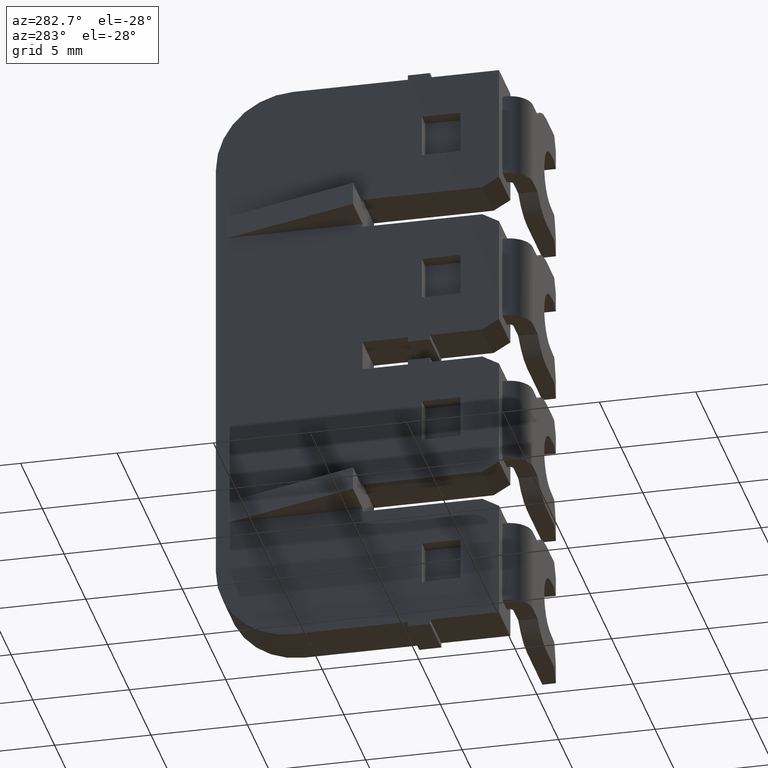
[diagram: clean part render]
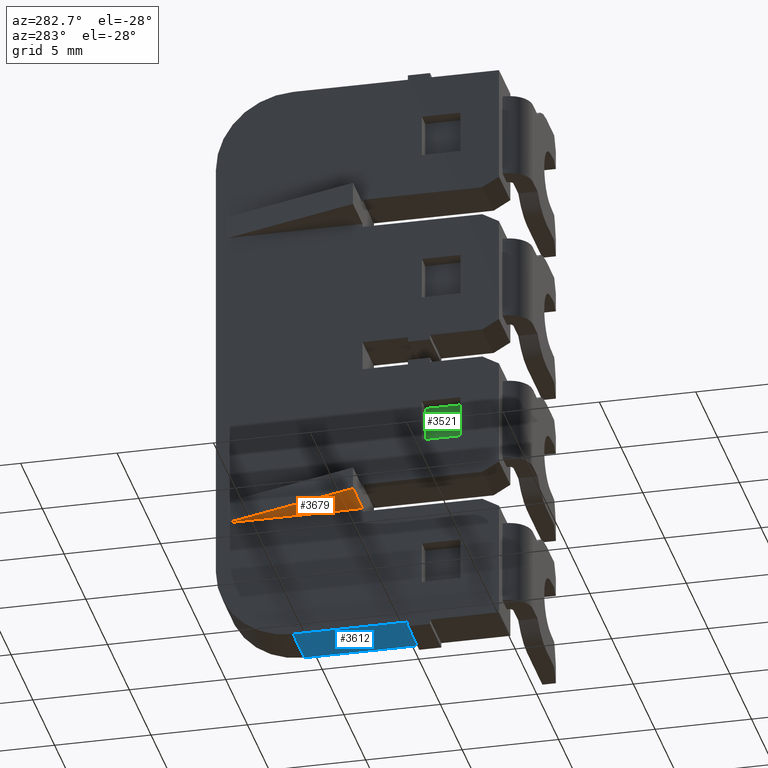
[diagram: same view with three faces highlighted in distinct colors, each labeled with its STEP entity id]
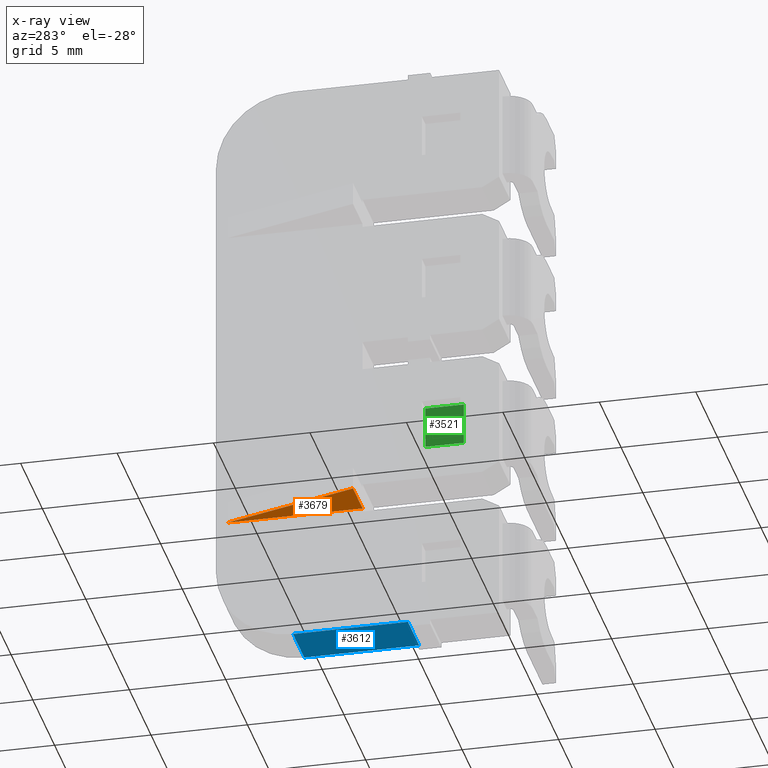
[diagram: x-ray of the same camera — body ghosted, the three highlighted faces saturated]
A machine part, auxiliary view with three faces highlighted in distinct colors.
The next image is the same camera in x-ray (body ghosted, the three faces saturated) — at least one of them is partly hidden behind the body in this view.
Their STEP definitions:

[orange] entity #3679 — the highlighted planar face has unit normal (0, 0, 1).
#96 = VECTOR ( 'NONE', #2350, 1000.000000000000000 ) ;
#100 = VECTOR ( 'NONE', #2333, 1000.000000000000100 ) ;
#154 = VECTOR ( 'NONE', #2476, 1000.000000000000000 ) ;
#543 = AXIS2_PLACEMENT_3D ( 'NONE', #5791, #5800, #5813 ) ;
#1906 = EDGE_CURVE ( 'NONE', #5139, #5089, #2325, .T. ) ;
#1917 = EDGE_CURVE ( 'NONE', #5139, #5108, #2320, .T. ) ;
#1952 = EDGE_CURVE ( 'NONE', #5089, #5108, #2485, .T. ) ;
#2320 = LINE ( 'NONE', #2336, #100 ) ;
#2325 = LINE ( 'NONE', #2332, #96 ) ;
#2332 = CARTESIAN_POINT ( 'NONE',  ( 1512.445209356660100, 1087.334526901996000, -16.92500000000000100 ) ) ;
#2333 = DIRECTION ( 'NONE',  ( -0.2998265967403909700, -0.9539937169012566700, 1.005147193930668400E-015 ) ) ;
#2336 = CARTESIAN_POINT ( 'NONE',  ( 1510.442980530508300, 1087.963798818786500, -16.92499999999999400 ) ) ;
#2350 = DIRECTION ( 'NONE',  ( 3.538835890992685300E-015, -1.000000000000000000, 1.096746120592191800E-016 ) ) ;
#2457 = CARTESIAN_POINT ( 'NONE',  ( 1510.045209356660100, 1087.334526901996000, -16.92499999999999400 ) ) ;
#2476 = DIRECTION ( 'NONE',  ( -1.000000000000000000, -3.663735981263015800E-015, 3.003463711734375600E-015 ) ) ;
#2485 = LINE ( 'NONE', #2457, #154 ) ;
#2496 = ORIENTED_EDGE ( 'NONE', *, *, #1917, .F. ) ;
#3679 = ADVANCED_FACE ( 'NONE', ( #5771 ), #5812, .F. ) ;
#4291 = CARTESIAN_POINT ( 'NONE',  ( 1512.445209356660100, 1094.334526901996000, -16.92500000000000100 ) ) ;
#4304 = CARTESIAN_POINT ( 'NONE',  ( 1510.245209356660100, 1087.334526901996000, -16.92499999999999400 ) ) ;
#4310 = CARTESIAN_POINT ( 'NONE',  ( 1512.445209356660100, 1087.334526901996000, -16.92500000000000100 ) ) ;
#4651 = EDGE_LOOP ( 'NONE', ( #2496, #4898, #4916 ) ) ;
#4898 = ORIENTED_EDGE ( 'NONE', *, *, #1906, .T. ) ;
#4916 = ORIENTED_EDGE ( 'NONE', *, *, #1952, .T. ) ;
#5089 = VERTEX_POINT ( 'NONE', #4310 ) ;
#5108 = VERTEX_POINT ( 'NONE', #4304 ) ;
#5139 = VERTEX_POINT ( 'NONE', #4291 ) ;
#5771 = FACE_OUTER_BOUND ( 'NONE', #4651, .T. ) ;
#5791 = CARTESIAN_POINT ( 'NONE',  ( 1512.445209356660100, 1087.334526901996000, -16.92500000000000100 ) ) ;
#5800 = DIRECTION ( 'NONE',  ( 3.003463711734375200E-015, 1.096746120592299800E-016, 1.000000000000000000 ) ) ;
#5812 = PLANE ( 'NONE',  #543 ) ;
#5813 = DIRECTION ( 'NONE',  ( 1.000000000000000000, -3.062777461358170000E-016, -3.003463711734375200E-015 ) ) ;

[blue] entity #3612 — the highlighted planar face has unit normal (0, 0, 1).
#4 = VECTOR ( 'NONE', #3457, 1000.000000000000000 ) ;
#28 = VECTOR ( 'NONE', #3502, 1000.000000000000000 ) ;
#47 = VECTOR ( 'NONE', #2338, 1000.000000000000000 ) ;
#62 = VECTOR ( 'NONE', #2272, 1000.000000000000000 ) ;
#505 = AXIS2_PLACEMENT_3D ( 'NONE', #5491, #5488, #5460 ) ;
#1869 = EDGE_CURVE ( 'NONE', #5144, #4457, #3426, .T. ) ;
#1873 = EDGE_CURVE ( 'NONE', #4457, #4478, #3487, .T. ) ;
#1894 = EDGE_CURVE ( 'NONE', #5128, #4478, #2265, .T. ) ;
#1914 = EDGE_CURVE ( 'NONE', #5144, #5128, #2315, .T. ) ;
#2265 = LINE ( 'NONE', #2283, #62 ) ;
#2272 = DIRECTION ( 'NONE',  ( -1.000000000000000000, -3.538835890992685300E-015, 3.039180497173570300E-015 ) ) ;
#2283 = CARTESIAN_POINT ( 'NONE',  ( 1512.445209356660100, 1084.984526901990000, -23.69999999999999900 ) ) ;
#2315 = LINE ( 'NONE', #2346, #47 ) ;
#2338 = DIRECTION ( 'NONE',  ( 3.538835890992685300E-015, -1.000000000000000000, 7.422753022654887400E-029 ) ) ;
#2346 = CARTESIAN_POINT ( 'NONE',  ( 1515.045209356660100, 1094.934526901996200, -23.70000000000000600 ) ) ;
#3426 = LINE ( 'NONE', #3440, #4 ) ;
#3440 = CARTESIAN_POINT ( 'NONE',  ( 1512.445209356660100, 1090.934526901996200, -23.69999999999999900 ) ) ;
#3457 = DIRECTION ( 'NONE',  ( -1.000000000000000000, -3.538835890992685300E-015, 3.039180497173570300E-015 ) ) ;
#3487 = LINE ( 'NONE', #3508, #28 ) ;
#3502 = DIRECTION ( 'NONE',  ( 3.538835890992685300E-015, -1.000000000000000000, 7.422753022654887400E-029 ) ) ;
#3508 = CARTESIAN_POINT ( 'NONE',  ( 1512.445209356660100, 1094.934526901996200, -23.69999999999999900 ) ) ;
#3612 = ADVANCED_FACE ( 'NONE', ( #5499 ), #5458, .F. ) ;
#4049 = CARTESIAN_POINT ( 'NONE',  ( 1512.445209356660100, 1090.934526901996200, -23.69999999999999900 ) ) ;
#4075 = CARTESIAN_POINT ( 'NONE',  ( 1512.445209356660100, 1084.984526901990000, -23.69999999999999900 ) ) ;
#4319 = CARTESIAN_POINT ( 'NONE',  ( 1515.045209356660100, 1084.984526901990000, -23.70000000000000600 ) ) ;
#4405 = CARTESIAN_POINT ( 'NONE',  ( 1515.045209356660100, 1090.934526901996200, -23.70000000000000600 ) ) ;
#4457 = VERTEX_POINT ( 'NONE', #4049 ) ;
#4478 = VERTEX_POINT ( 'NONE', #4075 ) ;
#4610 = EDGE_LOOP ( 'NONE', ( #4868, #4855, #4840, #4875 ) ) ;
#4840 = ORIENTED_EDGE ( 'NONE', *, *, #1873, .F. ) ;
#4855 = ORIENTED_EDGE ( 'NONE', *, *, #1894, .T. ) ;
#4868 = ORIENTED_EDGE ( 'NONE', *, *, #1914, .T. ) ;
#4875 = ORIENTED_EDGE ( 'NONE', *, *, #1869, .F. ) ;
#5128 = VERTEX_POINT ( 'NONE', #4319 ) ;
#5144 = VERTEX_POINT ( 'NONE', #4405 ) ;
#5458 = PLANE ( 'NONE',  #505 ) ;
#5460 = DIRECTION ( 'NONE',  ( -2.521813793386565200E-016, 1.000000000000000000, -8.421626651931530200E-029 ) ) ;
#5488 = DIRECTION ( 'NONE',  ( 3.039180497173570300E-015, 8.498269124915168100E-029, 1.000000000000000000 ) ) ;
#5491 = CARTESIAN_POINT ( 'NONE',  ( 1512.445209356660100, 1094.934526901996200, -23.69999999999999900 ) ) ;
#5499 = FACE_OUTER_BOUND ( 'NONE', #4610, .T. ) ;

[green] entity #3521 — the highlighted planar face has unit normal (1, 0, -0).
#222 = VECTOR ( 'NONE', #838, 1000.000000000000000 ) ;
#269 = VECTOR ( 'NONE', #1029, 1000.000000000000000 ) ;
#281 = VECTOR ( 'NONE', #997, 1000.000000000000000 ) ;
#339 = VECTOR ( 'NONE', #1113, 1000.000000000000000 ) ;
#464 = AXIS2_PLACEMENT_3D ( 'NONE', #1543, #1506, #1520 ) ;
#817 = CARTESIAN_POINT ( 'NONE',  ( 1513.245209356659900, 1088.634526901996200, -13.34999999999999400 ) ) ;
#838 = DIRECTION ( 'NONE',  ( -3.524958103184870400E-015, 1.000000000000000000, 1.145728806816680900E-029 ) ) ;
#985 = LINE ( 'NONE', #1020, #269 ) ;
#997 = DIRECTION ( 'NONE',  ( 3.524958103184870400E-015, -1.000000000000000000, -1.145728806816680900E-029 ) ) ;
#1020 = CARTESIAN_POINT ( 'NONE',  ( 1513.245209356659900, 1084.259529724810100, -6.150000000000000400 ) ) ;
#1029 = DIRECTION ( 'NONE',  ( 3.497202527569240300E-015, 1.237602582263236500E-029, 1.000000000000000000 ) ) ;
#1039 = LINE ( 'NONE', #1041, #281 ) ;
#1041 = CARTESIAN_POINT ( 'NONE',  ( 1513.245209356659900, 1088.634526901996200, -11.14999999999999300 ) ) ;
#1104 = LINE ( 'NONE', #1125, #339 ) ;
#1113 = DIRECTION ( 'NONE',  ( -3.497202527569240300E-015, -1.237602582263236500E-029, -1.000000000000000000 ) ) ;
#1125 = CARTESIAN_POINT ( 'NONE',  ( 1513.245209356659900, 1082.259529724810100, -6.150000000000000400 ) ) ;
#1481 = PLANE ( 'NONE',  #464 ) ;
#1506 = DIRECTION ( 'NONE',  ( 1.000000000000000000, 3.524958103184870400E-015, -3.497202527569243900E-015 ) ) ;
#1520 = DIRECTION ( 'NONE',  ( -3.497202527569245500E-015, 4.240894357925960200E-016, -1.000000000000000000 ) ) ;
#1543 = CARTESIAN_POINT ( 'NONE',  ( 1513.245209356659900, 1088.634526901996200, -6.150000000000000400 ) ) ;
#1553 = FACE_OUTER_BOUND ( 'NONE', #4729, .T. ) ;
#1828 = LINE ( 'NONE', #817, #222 ) ;
#2040 = EDGE_CURVE ( 'NONE', #5018, #4540, #1828, .T. ) ;
#2107 = EDGE_CURVE ( 'NONE', #4540, #4528, #985, .T. ) ;
#2117 = EDGE_CURVE ( 'NONE', #4528, #4942, #1039, .T. ) ;
#2139 = EDGE_CURVE ( 'NONE', #4942, #5018, #1104, .T. ) ;
#3380 = ORIENTED_EDGE ( 'NONE', *, *, #2139, .F. ) ;
#3386 = ORIENTED_EDGE ( 'NONE', *, *, #2107, .F. ) ;
#3395 = ORIENTED_EDGE ( 'NONE', *, *, #2040, .F. ) ;
#3419 = ORIENTED_EDGE ( 'NONE', *, *, #2117, .F. ) ;
#3521 = ADVANCED_FACE ( 'NONE', ( #1553 ), #1481, .F. ) ;
#4117 = CARTESIAN_POINT ( 'NONE',  ( 1513.245209356659900, 1084.259529724810100, -13.35000000000000100 ) ) ;
#4136 = CARTESIAN_POINT ( 'NONE',  ( 1513.245209356659900, 1084.259529724810100, -11.14999999999999300 ) ) ;
#4158 = CARTESIAN_POINT ( 'NONE',  ( 1513.245209356659900, 1082.259529724810100, -11.14999999999999500 ) ) ;
#4269 = CARTESIAN_POINT ( 'NONE',  ( 1513.245209356659900, 1082.259529724810100, -13.34999999999999400 ) ) ;
#4528 = VERTEX_POINT ( 'NONE', #4136 ) ;
#4540 = VERTEX_POINT ( 'NONE', #4117 ) ;
#4729 = EDGE_LOOP ( 'NONE', ( #3395, #3380, #3419, #3386 ) ) ;
#4942 = VERTEX_POINT ( 'NONE', #4158 ) ;
#5018 = VERTEX_POINT ( 'NONE', #4269 ) ;